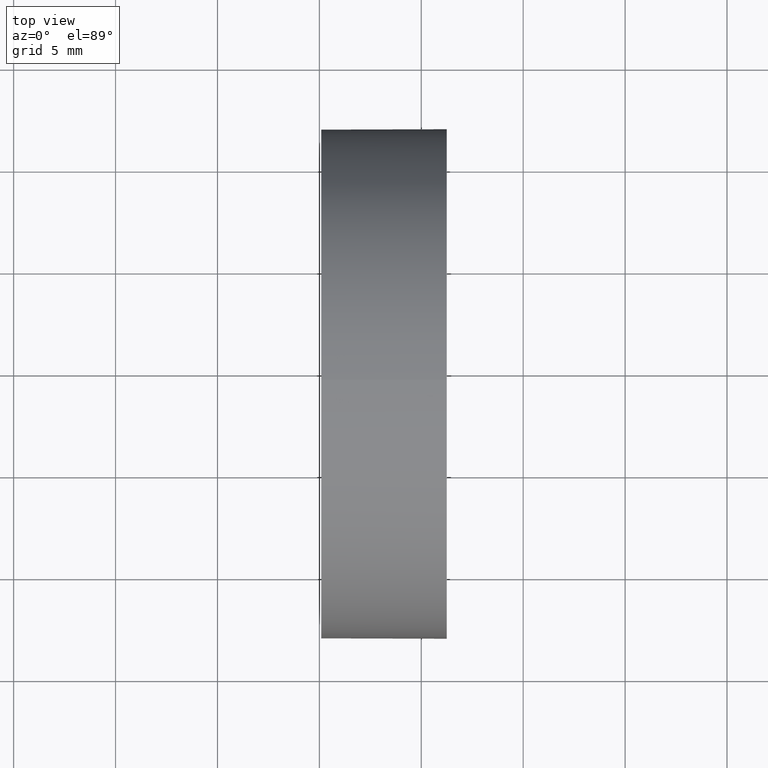
[diagram: clean part render]
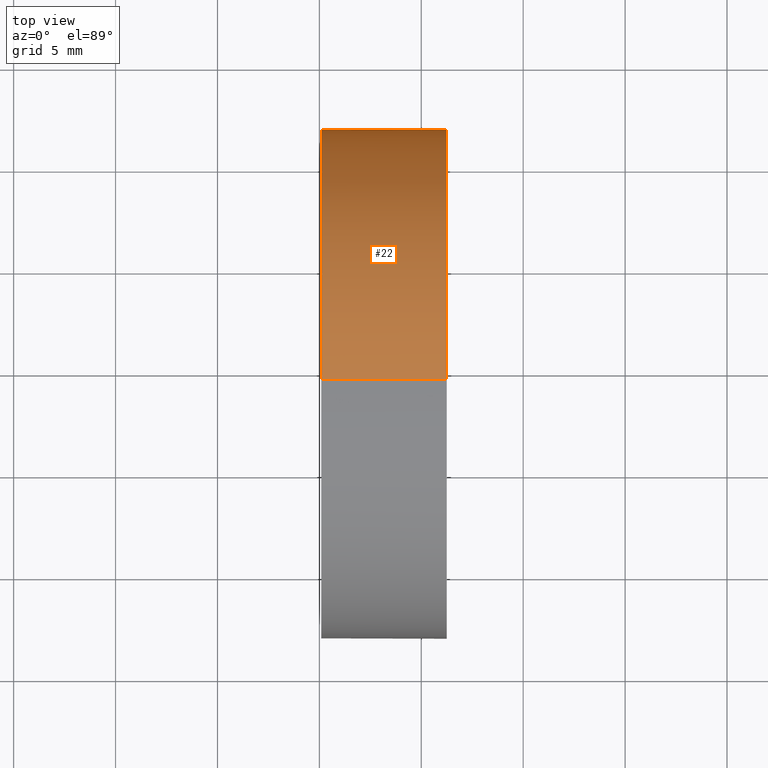
[diagram: same view with one face highlighted and labeled with its STEP entity id]
A machine part, top view. The second image highlights one B-rep face of the part: STEP entity #22.
In plain terms, the highlighted cylindrical surface (partial cylindrical patch) has radius 12.5 mm, axis along (-1, -0, -0).
Its self-contained STEP definition (entity closure, byte-faithful):
#1 = CARTESIAN_POINT ( 'NONE',  ( 115.0926555349195200, 69.37802112337243400, -12.49999999999999600 ) ) ;
#7 = FACE_OUTER_BOUND ( 'NONE', #20, .T. ) ;
#13 = VERTEX_POINT ( 'NONE', #103 ) ;
#14 = DIRECTION ( 'NONE',  ( 0.0000000000000000000, 0.0000000000000000000, 1.000000000000000000 ) ) ;
#20 = EDGE_LOOP ( 'NONE', ( #169, #43, #50, #96, #126 ) ) ;
#22 = ADVANCED_FACE ( 'NONE', ( #7 ), #40, .T. ) ;
#24 = DIRECTION ( 'NONE',  ( -1.000000000000000000, -0.0000000000000000000, -0.0000000000000000000 ) ) ;
#27 = CARTESIAN_POINT ( 'NONE',  ( 115.0926555349195200, 69.37802112337243400, 0.0000000000000000000 ) ) ;
#28 = CARTESIAN_POINT ( 'NONE',  ( 108.9851430021651000, 69.37802112337243400, 12.50000000000001100 ) ) ;
#32 = VECTOR ( 'NONE', #124, 1000.000000000000000 ) ;
#36 = VERTEX_POINT ( 'NONE', #64 ) ;
#37 = DIRECTION ( 'NONE',  ( -1.000000000000000000, -0.0000000000000000000, -0.0000000000000000000 ) ) ;
#40 = CYLINDRICAL_SURFACE ( 'NONE', #100, 12.50000000000001100 ) ;
#43 = ORIENTED_EDGE ( 'NONE', *, *, #125, .T. ) ;
#47 = DIRECTION ( 'NONE',  ( 0.0000000000000000000, 0.0000000000000000000, 1.000000000000000000 ) ) ;
#50 = ORIENTED_EDGE ( 'NONE', *, *, #58, .F. ) ;
#58 = EDGE_CURVE ( 'NONE', #13, #94, #181, .T. ) ;
#60 = LINE ( 'NONE', #155, #32 ) ;
#61 = EDGE_CURVE ( 'NONE', #129, #36, #143, .T. ) ;
#64 = CARTESIAN_POINT ( 'NONE',  ( 121.2489299334208500, 81.87802112337134000, 0.0000000000000000000 ) ) ;
#70 = DIRECTION ( 'NONE',  ( 0.0000000000000000000, 0.0000000000000000000, 1.000000000000000000 ) ) ;
#76 = EDGE_CURVE ( 'NONE', #129, #13, #136, .T. ) ;
#78 = DIRECTION ( 'NONE',  ( -1.000000000000000000, -0.0000000000000000000, -0.0000000000000000000 ) ) ;
#82 = CARTESIAN_POINT ( 'NONE',  ( 121.2489299334208700, 69.37802112337243400, -12.50000000000002500 ) ) ;
#94 = VERTEX_POINT ( 'NONE', #1 ) ;
#96 = ORIENTED_EDGE ( 'NONE', *, *, #76, .F. ) ;
#97 = CARTESIAN_POINT ( 'NONE',  ( 121.2489299334208700, 69.37802112337243400, 0.0000000000000000000 ) ) ;
#98 = CARTESIAN_POINT ( 'NONE',  ( 121.2489299334208700, 69.37802112337243400, 0.0000000000000000000 ) ) ;
#100 = AXIS2_PLACEMENT_3D ( 'NONE', #151, #166, #47 ) ;
#103 = CARTESIAN_POINT ( 'NONE',  ( 115.0926555349195200, 69.37802112337243400, 12.49999999999999600 ) ) ;
#108 = AXIS2_PLACEMENT_3D ( 'NONE', #98, #152, #14 ) ;
#118 = DIRECTION ( 'NONE',  ( 0.0000000000000000000, 0.0000000000000000000, 1.000000000000000000 ) ) ;
#123 = VERTEX_POINT ( 'NONE', #82 ) ;
#124 = DIRECTION ( 'NONE',  ( -1.000000000000000000, -0.0000000000000000000, -0.0000000000000000000 ) ) ;
#125 = EDGE_CURVE ( 'NONE', #123, #94, #60, .T. ) ;
#126 = ORIENTED_EDGE ( 'NONE', *, *, #61, .T. ) ;
#128 = AXIS2_PLACEMENT_3D ( 'NONE', #97, #78, #70 ) ;
#129 = VERTEX_POINT ( 'NONE', #153 ) ;
#135 = EDGE_CURVE ( 'NONE', #36, #123, #145, .T. ) ;
#136 = LINE ( 'NONE', #28, #142 ) ;
#142 = VECTOR ( 'NONE', #37, 1000.000000000000000 ) ;
#143 = CIRCLE ( 'NONE', #108, 12.50000000000002500 ) ;
#145 = CIRCLE ( 'NONE', #128, 12.50000000000002500 ) ;
#151 = CARTESIAN_POINT ( 'NONE',  ( 108.9851430021651000, 69.37802112337243400, 0.0000000000000000000 ) ) ;
#152 = DIRECTION ( 'NONE',  ( -1.000000000000000000, -0.0000000000000000000, -0.0000000000000000000 ) ) ;
#153 = CARTESIAN_POINT ( 'NONE',  ( 121.2489299334208700, 69.37802112337243400, 12.50000000000002500 ) ) ;
#155 = CARTESIAN_POINT ( 'NONE',  ( 108.9851430021651000, 69.37802112337243400, -12.50000000000001100 ) ) ;
#166 = DIRECTION ( 'NONE',  ( -1.000000000000000000, -0.0000000000000000000, -0.0000000000000000000 ) ) ;
#169 = ORIENTED_EDGE ( 'NONE', *, *, #135, .T. ) ;
#176 = AXIS2_PLACEMENT_3D ( 'NONE', #27, #24, #118 ) ;
#181 = CIRCLE ( 'NONE', #176, 12.49999999999999600 ) ;